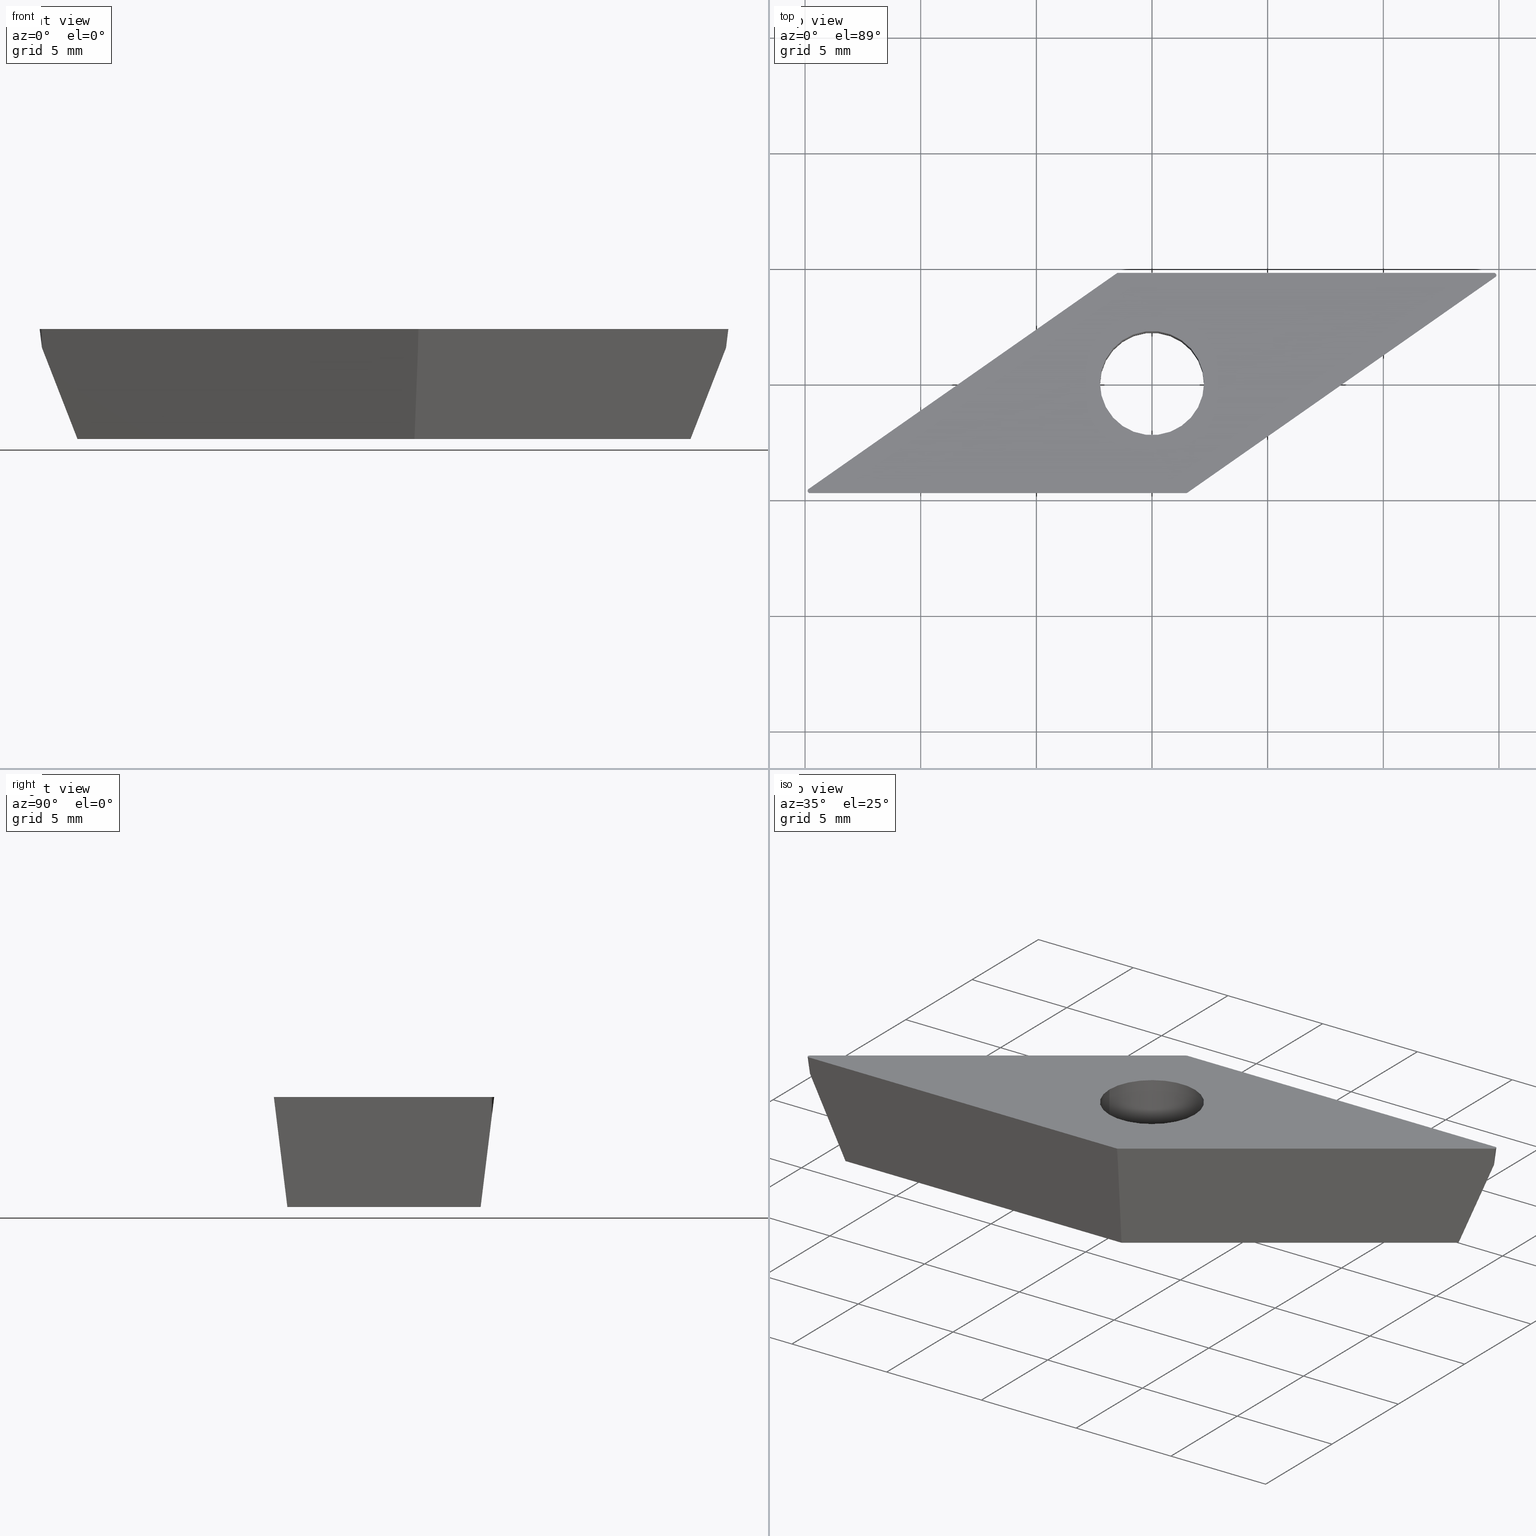
[diagram: canonical four-view strip — front | top / right | iso, engineering-drawing reading convention]
A machine part, canonical four-view strip (front | top / right | iso — engineering-drawing reading convention). The complete STEP part file that produces these views, byte-faithful:
ISO-10303-21;
HEADER;
FILE_DESCRIPTION (( 'STEP AP214' ),
    '1' );
FILE_NAME ('VC.. 160401.step',
    '2017-03-30T12:57:35',
    ( '' ),
    ( '' ),
    'SwSTEP 2.0',
    'SolidWorks 2016',
    '' );
FILE_SCHEMA (( 'AUTOMOTIVE_DESIGN' ));
ENDSEC;

DATA;
#1 = DIRECTION ( 'NONE',  ( 1.000000000000000000, 0.0000000000000000000, 0.0000000000000000000 ) ) ;
#2 = VECTOR ( 'NONE', #94, 1000.000000000000100 ) ;
#3 = DIRECTION ( 'NONE',  ( 0.0000000000000000000, 0.0000000000000000000, 1.000000000000000000 ) ) ;
#4 = MANIFOLD_SOLID_BREP ( 'Formschr�ge1', #48 ) ;
#5 = DIRECTION ( 'NONE',  ( 1.000000000000000000, 0.0000000000000000000, 0.0000000000000000000 ) ) ;
#6 = APPLICATION_CONTEXT ( 'automotive_design' ) ;
#7 = CYLINDRICAL_SURFACE ( 'NONE', #454, 2.250000000000000000 ) ;
#8 = DIRECTION ( 'NONE',  ( 0.0000000000000000000, 0.0000000000000000000, 1.000000000000000000 ) ) ;
#9 = ORIENTED_EDGE ( 'NONE', *, *, #249, .F. ) ;
#10 = CARTESIAN_POINT ( 'NONE',  ( -1.342790669617006900, 4.258787908418475400, -4.102405773799581800 ) ) ;
#11 = CARTESIAN_POINT ( 'NONE',  ( 0.0000000000000000000, 0.0000000000000000000, 0.0000000000000000000 ) ) ;
#12 =( NAMED_UNIT ( * ) SI_UNIT ( $, .STERADIAN. ) SOLID_ANGLE_UNIT ( ) );
#13 =( NAMED_UNIT ( * ) PLANE_ANGLE_UNIT ( ) SI_UNIT ( $, .RADIAN. ) );
#14 = VERTEX_POINT ( 'NONE', #286 ) ;
#15 =( LENGTH_UNIT ( ) NAMED_UNIT ( * ) SI_UNIT ( .MILLI., .METRE. ) );
#16 = SURFACE_STYLE_USAGE ( .BOTH. , #23 ) ;
#17 = DIRECTION ( 'NONE',  ( -1.000000000000000000, 0.0000000000000000000, 0.0000000000000000000 ) ) ;
#18 = DIRECTION ( 'NONE',  ( -1.000000000000000000, 0.0000000000000000000, 0.0000000000000000000 ) ) ;
#19 = ORIENTED_EDGE ( 'NONE', *, *, #396, .F. ) ;
#20 = CARTESIAN_POINT ( 'NONE',  ( 5.564323099076069000, -1.061573343201182000, -5.711999999999998900 ) ) ;
#21 = APPLICATION_CONTEXT ( 'automotive_design' ) ;
#22 = VERTEX_POINT ( 'NONE', #231 ) ;
#23 = SURFACE_SIDE_STYLE ('',( #448 ) ) ;
#24 = FILL_AREA_STYLE ('',( #49 ) ) ;
#25 = VECTOR ( 'NONE', #125, 1000.000000000000000 ) ;
#26 = EDGE_LOOP ( 'NONE', ( #442, #465 ) ) ;
#27 = ADVANCED_FACE ( 'NONE', ( #216 ), #476, .T. ) ;
#28 = FACE_OUTER_BOUND ( 'NONE', #432, .T. ) ;
#29 = VERTEX_POINT ( 'NONE', #287 ) ;
#30 = COLOUR_RGB ( '',0.7960784313725489700, 0.8235294117647058400, 0.9372549019607843100 ) ;
#31 = SURFACE_STYLE_FILL_AREA ( #307 ) ;
#32 = EDGE_LOOP ( 'NONE', ( #346, #358, #364, #365, #368, #376 ) ) ;
#33 = CARTESIAN_POINT ( 'NONE',  ( 14.84491840965371900, 4.580584795571104100, 0.0000000000000000000 ) ) ;
#34 =( NAMED_UNIT ( * ) SI_UNIT ( $, .STERADIAN. ) SOLID_ANGLE_UNIT ( ) );
#35 = ADVANCED_FACE ( 'NONE', ( #218 ), #158, .F. ) ;
#36 = VERTEX_POINT ( 'NONE', #139 ) ;
#37 = APPLICATION_CONTEXT ( 'automotive_design' ) ;
#38 = VERTEX_POINT ( 'NONE', #148 ) ;
#39 =( NAMED_UNIT ( * ) PLANE_ANGLE_UNIT ( ) SI_UNIT ( $, .RADIAN. ) );
#40 = ORIENTED_EDGE ( 'NONE', *, *, #343, .F. ) ;
#41 =( LENGTH_UNIT ( ) NAMED_UNIT ( * ) SI_UNIT ( .MILLI., .METRE. ) );
#42 = VECTOR ( 'NONE', #212, 1000.000000000000100 ) ;
#43 = ORIENTED_EDGE ( 'NONE', *, *, #412, .F. ) ;
#44 = DIRECTION ( 'NONE',  ( -0.0000000000000000000, -0.0000000000000000000, 1.000000000000000000 ) ) ;
#45 = ORIENTED_EDGE ( 'NONE', *, *, #456, .T. ) ;
#46 = LINE ( 'NONE', #105, #2 ) ;
#47 = ORIENTED_EDGE ( 'NONE', *, *, #464, .F. ) ;
#48 = CLOSED_SHELL ( 'NONE', ( #185, #35, #459, #455, #200, #27, #474, #152, #434, #134, #203, #369, #462 ) ) ;
#49 = FILL_AREA_STYLE_COLOUR ( '', #86 ) ;
#50 = B_SPLINE_CURVE_WITH_KNOTS ( 'NONE', 3,
 ( #404, #371, #239, #273 ),
 .UNSPECIFIED., .F., .F.,
 ( 4, 4 ),
 ( 4.336808689942017700E-019, 0.01456840004335754200 ),
 .UNSPECIFIED. ) ;
#51 = VECTOR ( 'NONE', #138, 1000.000000000000000 ) ;
#52 = CARTESIAN_POINT ( 'NONE',  ( 0.0000000000000000000, 0.0000000000000000000, 0.0000000000000000000 ) ) ;
#53 = CARTESIAN_POINT ( 'NONE',  ( -1.527438246783353200, 4.744415204428900500, 0.0000000000000000000 ) ) ;
#54 = ORIENTED_EDGE ( 'NONE', *, *, #428, .F. ) ;
#55 = DIRECTION ( 'NONE',  ( -1.000000000000000000, 0.0000000000000000000, -0.0000000000000000000 ) ) ;
#56 = DIRECTION ( 'NONE',  ( 0.0000000000000000000, 0.0000000000000000000, -1.000000000000000000 ) ) ;
#57 = VECTOR ( 'NONE', #121, 1000.000000000000000 ) ;
#58 = ORIENTED_EDGE ( 'NONE', *, *, #279, .F. ) ;
#59 = LINE ( 'NONE', #168, #57 ) ;
#60 = DIRECTION ( 'NONE',  ( -1.000000000000000000, 0.0000000000000000000, 0.0000000000000000000 ) ) ;
#61 = DIRECTION ( 'NONE',  ( -0.0000000000000000000, -0.0000000000000000000, 1.000000000000000000 ) ) ;
#62 = CARTESIAN_POINT ( 'NONE',  ( -14.78756076601861800, -4.662500000000001400, 0.0000000000000000000 ) ) ;
#63 = CIRCLE ( 'NONE', #392, 2.250000000000000000 ) ;
#64 = CARTESIAN_POINT ( 'NONE',  ( -13.25106736044395100, -4.178045490102173100, -4.760000000000000700 ) ) ;
#65 = DIRECTION ( 'NONE',  ( -0.1218693434051477400, 0.0000000000000000000, 0.9925461516413219800 ) ) ;
#66 = VECTOR ( 'NONE', #283, 1000.000000000000000 ) ;
#67 = CARTESIAN_POINT ( 'NONE',  ( 3.949133186574038700, 4.061154588122606800, -5.711999999999998900 ) ) ;
#68 = ORIENTED_EDGE ( 'NONE', *, *, #428, .T. ) ;
#69 = ORIENTED_EDGE ( 'NONE', *, *, #426, .F. ) ;
#70 = ORIENTED_EDGE ( 'NONE', *, *, #384, .F. ) ;
#71 = PRODUCT ( 'VC.. 160401', 'VC.. 160401', '', ( #109 ) ) ;
#72 = ORIENTED_EDGE ( 'NONE', *, *, #433, .F. ) ;
#73 = VERTEX_POINT ( 'NONE', #276 ) ;
#74 = CARTESIAN_POINT ( 'NONE',  ( 9.368346976296321000, 4.061154588122611200, -5.711999999999998900 ) ) ;
#75 = CARTESIAN_POINT ( 'NONE',  ( 14.78756076601861500, 4.061154588122611200, -5.711999999999998900 ) ) ;
#76 = CARTESIAN_POINT ( 'NONE',  ( 1.470080603148248500, -4.662500000000000500, 0.0000000000000000000 ) ) ;
#77 = CARTESIAN_POINT ( 'NONE',  ( -1.470080603148251800, 4.762499999999999300, 0.0000000000000000000 ) ) ;
#78 = FACE_OUTER_BOUND ( 'NONE', #471, .T. ) ;
#79 = UNCERTAINTY_MEASURE_WITH_UNIT (LENGTH_MEASURE( 1.000000000000000100E-005 ), #447, 'distance_accuracy_value', 'NONE');
#80 = CARTESIAN_POINT ( 'NONE',  ( 3.949133186574037800, 4.762499999999999300, 0.0000000000000000000 ) ) ;
#81 = ORIENTED_EDGE ( 'NONE', *, *, #211, .F. ) ;
#82 = DIRECTION ( 'NONE',  ( -1.000000000000000000, 0.0000000000000000000, 0.0000000000000000000 ) ) ;
#83 = CARTESIAN_POINT ( 'NONE',  ( 9.368346976296321000, 4.762500000000003700, 0.0000000000000000000 ) ) ;
#84 = DIRECTION ( 'NONE',  ( -1.000000000000000000, -2.611539394764484900E-016, -0.0000000000000000000 ) ) ;
#85 = CARTESIAN_POINT ( 'NONE',  ( 14.78756076601861500, 4.762500000000003700, 0.0000000000000000000 ) ) ;
#86 = COLOUR_RGB ( '',0.7960784313725489700, 0.8235294117647058400, 0.9372549019607843100 ) ;
#87 = ORIENTED_EDGE ( 'NONE', *, *, #407, .F. ) ;
#88 = EDGE_LOOP ( 'NONE', ( #406, #430, #87 ) ) ;
#89 = CARTESIAN_POINT ( 'NONE',  ( 1.470080603148248500, -4.662500000000000500, 0.0000000000000000000 ) ) ;
#90 = CARTESIAN_POINT ( 'NONE',  ( 0.0000000000000000000, 0.0000000000000000000, -4.759999999999999800 ) ) ;
#91 = CIRCLE ( 'NONE', #386, 0.09999999999999939500 ) ;
#92 = B_SPLINE_CURVE_WITH_KNOTS ( 'NONE', 3,
 ( #379, #367, #363, #361, #359, #357, #355 ),
 .UNSPECIFIED., .F., .F.,
 ( 4, 3, 4 ),
 ( 0.0000000000000000000, 0.001989064735450687800, 0.003978129470901375600 ),
 .UNSPECIFIED. ) ;
#93 = CARTESIAN_POINT ( 'NONE',  ( 1.317332682910368400, -4.178045490102174900, -4.759999999999999800 ) ) ;
#94 = DIRECTION ( 'NONE',  ( 0.8191520442889945700, 0.5735764363510419400, -0.0000000000000000000 ) ) ;
#95 = CARTESIAN_POINT ( 'NONE',  ( -14.78756076601861700, -4.762500000000002000, 0.0000000000000000000 ) ) ;
#96 = EDGE_CURVE ( 'NONE', #38, #473, #373, .T. ) ;
#97 = CARTESIAN_POINT ( 'NONE',  ( -1.501610482036148000, 4.762499999999999300, 0.0000000000000000000 ) ) ;
#98 = CARTESIAN_POINT ( 'NONE',  ( -1.317332682910756800, 4.178045490102173100, -4.759999999999998900 ) ) ;
#99 = DIRECTION ( 'NONE',  ( 0.06990138369076598400, -0.09982952178648429900, -0.9925461516413219800 ) ) ;
#100 = EDGE_LOOP ( 'NONE', ( #9, #19, #81 ) ) ;
#101 = DIRECTION ( 'NONE',  ( 1.000000000000000000, 0.0000000000000000000, 0.0000000000000000000 ) ) ;
#102 = CARTESIAN_POINT ( 'NONE',  ( 13.25106736044730100, 4.178045490102176600, -4.759999999999998900 ) ) ;
#103 = CARTESIAN_POINT ( 'NONE',  ( 8.394934012661277500, 4.178045490102176600, -4.759999999999997100 ) ) ;
#104 = ADVANCED_BREP_SHAPE_REPRESENTATION ( 'VC.. 160401', ( #4, #252 ), #340 ) ;
#105 = CARTESIAN_POINT ( 'NONE',  ( 15.10472024625493900, 4.762500000000003700, 0.0000000000000000000 ) ) ;
#106 = CARTESIAN_POINT ( 'NONE',  ( -1.527438246783353200, 4.744415204428900500, 0.0000000000000000000 ) ) ;
#107 = EDGE_LOOP ( 'NONE', ( #182, #43, #47 ) ) ;
#108 = B_SPLINE_CURVE_WITH_KNOTS ( 'NONE', 3,
 ( #127, #10, #118, #117, #131, #129, #128 ),
 .UNSPECIFIED., .F., .F.,
 ( 4, 3, 4 ),
 ( 0.0000000000000000000, 0.001989064735450666100, 0.003978129470901333900 ),
 .UNSPECIFIED. ) ;
#109 = PRODUCT_CONTEXT ( 'NONE', #339, 'mechanical' ) ;
#110 = CARTESIAN_POINT ( 'NONE',  ( -2.250000000000000000, 2.755455298081544300E-016, -4.759999999999999800 ) ) ;
#111 = CARTESIAN_POINT ( 'NONE',  ( -14.78756076601861700, -4.762500000000002000, 0.0000000000000000000 ) ) ;
#112 = VECTOR ( 'NONE', #261, 1000.000000000000000 ) ;
#113 = CARTESIAN_POINT ( 'NONE',  ( 0.0000000000000000000, 0.0000000000000000000, -4.759999999999999800 ) ) ;
#114 = CARTESIAN_POINT ( 'NONE',  ( 14.78756076601861500, 4.762500000000003700, 0.0000000000000000000 ) ) ;
#115 = DIRECTION ( 'NONE',  ( -0.0000000000000000000, -0.0000000000000000000, 1.000000000000000000 ) ) ;
#116 = DIRECTION ( 'NONE',  ( -0.0000000000000000000, -0.0000000000000000000, 1.000000000000000000 ) ) ;
#117 = CARTESIAN_POINT ( 'NONE',  ( -1.393706643029502600, 4.420272745051085500, -2.787217321398748600 ) ) ;
#118 = CARTESIAN_POINT ( 'NONE',  ( -1.368248656323254100, 4.339530326734782200, -3.444811547599165600 ) ) ;
#119 = DIRECTION ( 'NONE',  ( 3.182665913166247500E-017, -0.1218693434051477400, -0.9925461516413219800 ) ) ;
#120 = DIRECTION ( 'NONE',  ( 0.0000000000000000000, 0.0000000000000000000, 1.000000000000000000 ) ) ;
#121 = DIRECTION ( 'NONE',  ( 0.0000000000000000000, 0.0000000000000000000, 1.000000000000000000 ) ) ;
#122 = DIRECTION ( 'NONE',  ( -1.000000000000000000, 0.0000000000000000000, 0.0000000000000000000 ) ) ;
#123 = VECTOR ( 'NONE', #119, 1000.000000000000000 ) ;
#124 = VERTEX_POINT ( 'NONE', #309 ) ;
#125 = DIRECTION ( 'NONE',  ( 1.000000000000000000, 5.223078789528969500E-017, -0.0000000000000000000 ) ) ;
#126 = CARTESIAN_POINT ( 'NONE',  ( 14.78756076601861500, 4.662500000000004100, -0.8144346427974578100 ) ) ;
#127 = CARTESIAN_POINT ( 'NONE',  ( -1.317332682910756800, 4.178045490102173100, -4.759999999999998900 ) ) ;
#128 = CARTESIAN_POINT ( 'NONE',  ( -1.470080603148246300, 4.662499999999996100, -0.8144346427974968900 ) ) ;
#129 = CARTESIAN_POINT ( 'NONE',  ( -1.444622616442004200, 4.581757581683691100, -1.472028868997913700 ) ) ;
#130 = APPLICATION_PROTOCOL_DEFINITION ( 'draft international standard', 'automotive_design', 1998, #339 ) ;
#131 = CARTESIAN_POINT ( 'NONE',  ( -1.419164629735751200, 4.501015163367388700, -2.129623095198331500 ) ) ;
#132 = CIRCLE ( 'NONE', #326, 0.1000000000000000500 ) ;
#133 = CARTESIAN_POINT ( 'NONE',  ( -13.25106736044395100, -4.178045490102173100, -4.760000000000000700 ) ) ;
#134 = ADVANCED_FACE ( 'NONE', ( #157 ), #352, .T. ) ;
#135 = DIRECTION ( 'NONE',  ( -1.000000000000000000, 0.0000000000000000000, 0.0000000000000000000 ) ) ;
#136 = CARTESIAN_POINT ( 'NONE',  ( -14.84491840965372200, -4.580584795571102300, 0.0000000000000000000 ) ) ;
#137 = VECTOR ( 'NONE', #302, 1000.000000000000000 ) ;
#138 = DIRECTION ( 'NONE',  ( -3.182665913166247500E-017, 0.1218693434051477400, 0.9925461516413219800 ) ) ;
#139 = CARTESIAN_POINT ( 'NONE',  ( 14.84491840965371900, 4.580584795571104100, 0.0000000000000000000 ) ) ;
#140 = CARTESIAN_POINT ( 'NONE',  ( 14.84491840965371900, 4.580584795571104100, 0.0000000000000000000 ) ) ;
#141 = CARTESIAN_POINT ( 'NONE',  ( 2.250000000000000000, 0.0000000000000000000, 0.0000000000000000000 ) ) ;
#142 = EDGE_CURVE ( 'NONE', #314, #124, #50, .T. ) ;
#143 = CARTESIAN_POINT ( 'NONE',  ( 14.78756076601861500, 4.662500000000003200, 0.0000000000000000000 ) ) ;
#144 = LINE ( 'NONE', #140, #153 ) ;
#145 = B_SPLINE_CURVE_WITH_KNOTS ( 'NONE', 3,
 ( #102, #103, #192, #98 ),
 .UNSPECIFIED., .F., .F.,
 ( 4, 4 ),
 ( 0.0000000000000000000, 0.01456840004335805900 ),
 .UNSPECIFIED. ) ;
#146 = CARTESIAN_POINT ( 'NONE',  ( 1.317332682910368400, -4.178045490102174900, -4.759999999999999800 ) ) ;
#147 = PLANE ( 'NONE',  #265 ) ;
#148 = CARTESIAN_POINT ( 'NONE',  ( -1.317332682910756800, 4.178045490102173100, -4.759999999999998900 ) ) ;
#149 = LINE ( 'NONE', #206, #25 ) ;
#150 = DIRECTION ( 'NONE',  ( -1.000000000000000000, -8.673617379884030700E-015, 0.0000000000000000000 ) ) ;
#151 = CARTESIAN_POINT ( 'NONE',  ( 1.527438246783349800, -4.744415204428903200, 0.0000000000000000000 ) ) ;
#152 = ADVANCED_FACE ( 'NONE', ( #353, #375 ), #316, .F. ) ;
#153 = VECTOR ( 'NONE', #160, 1000.000000000000000 ) ;
#154 = DIRECTION ( 'NONE',  ( -1.000000000000000000, 0.0000000000000000000, 0.0000000000000000000 ) ) ;
#155 = DIRECTION ( 'NONE',  ( -0.0000000000000000000, -0.0000000000000000000, 1.000000000000000000 ) ) ;
#156 = CARTESIAN_POINT ( 'NONE',  ( 0.0000000000000000000, 0.0000000000000000000, 0.0000000000000000000 ) ) ;
#157 = FACE_OUTER_BOUND ( 'NONE', #88, .T. ) ;
#158 = CYLINDRICAL_SURFACE ( 'NONE', #477, 2.250000000000000000 ) ;
#159 = CARTESIAN_POINT ( 'NONE',  ( 2.250000000000000000, 0.0000000000000000000, -4.759999999999999800 ) ) ;
#160 = DIRECTION ( 'NONE',  ( 0.06990138369076599700, -0.09982952178648427100, 0.9925461516413219800 ) ) ;
#161 = CARTESIAN_POINT ( 'NONE',  ( 13.50714959470895600, 4.258787908418492300, -4.102405773799485900 ) ) ;
#162 = DIRECTION ( 'NONE',  ( -1.000000000000000000, 8.673617379884030700E-015, 0.0000000000000000000 ) ) ;
#163 = DIRECTION ( 'NONE',  ( -0.0000000000000000000, -0.0000000000000000000, 1.000000000000000000 ) ) ;
#164 = CARTESIAN_POINT ( 'NONE',  ( -1.470080603148250700, 4.662499999999998800, 0.0000000000000000000 ) ) ;
#165 = LINE ( 'NONE', #284, #137 ) ;
#166 = CARTESIAN_POINT ( 'NONE',  ( 1.470080603148244300, -4.662500000000002300, -0.8144346427974711300 ) ) ;
#167 = SHAPE_DEFINITION_REPRESENTATION ( #272, #104 ) ;
#168 = CARTESIAN_POINT ( 'NONE',  ( 2.250000000000000000, 0.0000000000000000000, -4.759999999999999800 ) ) ;
#169 = CARTESIAN_POINT ( 'NONE',  ( 13.25106736044730100, 4.178045490102176600, -4.759999999999998900 ) ) ;
#170 = EDGE_LOOP ( 'NONE', ( #419, #422 ) ) ;
#171 = CARTESIAN_POINT ( 'NONE',  ( -1.470080603148251800, 4.762499999999999300, 0.0000000000000000000 ) ) ;
#172 = UNCERTAINTY_MEASURE_WITH_UNIT (LENGTH_MEASURE( 1.000000000000000100E-005 ), #15, 'distance_accuracy_value', 'NONE');
#173 = CIRCLE ( 'NONE', #418, 2.250000000000000000 ) ;
#174 = LINE ( 'NONE', #204, #66 ) ;
#175 = VECTOR ( 'NONE', #222, 1000.000000000000000 ) ;
#176 = CIRCLE ( 'NONE', #470, 2.250000000000000000 ) ;
#177 = VECTOR ( 'NONE', #84, 1000.000000000000000 ) ;
#178 = CARTESIAN_POINT ( 'NONE',  ( -2.250000000000000000, 2.755455298081544300E-016, 0.0000000000000000000 ) ) ;
#179 = DIRECTION ( 'NONE',  ( 1.000000000000000000, 0.0000000000000000000, 0.0000000000000000000 ) ) ;
#180 = LINE ( 'NONE', #171, #51 ) ;
#181 = CARTESIAN_POINT ( 'NONE',  ( 14.78756076601861500, 4.662500000000004100, -0.8144346427974578100 ) ) ;
#182 = ORIENTED_EDGE ( 'NONE', *, *, #456, .F. ) ;
#183 = LINE ( 'NONE', #251, #112 ) ;
#184 = EDGE_CURVE ( 'NONE', #14, #300, #176, .T. ) ;
#185 = ADVANCED_FACE ( 'NONE', ( #236 ), #347, .T. ) ;
#186 = CARTESIAN_POINT ( 'NONE',  ( -5.564323099080708000, 1.061573343207805600, -5.711999999999998900 ) ) ;
#187 = LINE ( 'NONE', #151, #175 ) ;
#188 = FACE_OUTER_BOUND ( 'NONE', #319, .T. ) ;
#189 = CARTESIAN_POINT ( 'NONE',  ( 13.76323182897069600, 4.339530326734805300, -3.444811547599007100 ) ) ;
#190 = CONICAL_SURFACE ( 'NONE', #372, 0.09999999999999939500, 0.1221730476396033400 ) ;
#191 = DIRECTION ( 'NONE',  ( 1.000000000000000000, 0.0000000000000000000, 0.0000000000000000000 ) ) ;
#192 = CARTESIAN_POINT ( 'NONE',  ( 3.538800664875263900, 4.178045490102172200, -4.759999999999998000 ) ) ;
#193 = CARTESIAN_POINT ( 'NONE',  ( 14.53147853175643400, 4.581757581683713300, -1.472028868997768100 ) ) ;
#194 = CARTESIAN_POINT ( 'NONE',  ( 14.27539629749443700, 4.501015163367415400, -2.129623095198148100 ) ) ;
#195 = DIRECTION ( 'NONE',  ( -0.0000000000000000000, -0.0000000000000000000, 1.000000000000000000 ) ) ;
#196 = FACE_OUTER_BOUND ( 'NONE', #107, .T. ) ;
#197 = CARTESIAN_POINT ( 'NONE',  ( 14.01931406323256700, 4.420272745051110300, -2.787217321398577100 ) ) ;
#198 = DIRECTION ( 'NONE',  ( 1.000000000000000000, 0.0000000000000000000, 0.0000000000000000000 ) ) ;
#199 = CIRCLE ( 'NONE', #389, 0.1000000000000000500 ) ;
#200 = ADVANCED_FACE ( 'NONE', ( #188 ), #230, .T. ) ;
#201 = EDGE_CURVE ( 'NONE', #381, #405, #149, .T. ) ;
#202 = DIRECTION ( 'NONE',  ( 0.0000000000000000000, 0.0000000000000000000, 1.000000000000000000 ) ) ;
#203 = ADVANCED_FACE ( 'NONE', ( #342 ), #337, .T. ) ;
#204 = CARTESIAN_POINT ( 'NONE',  ( -14.84491840965372400, -4.580584795571104100, 0.0000000000000000000 ) ) ;
#205 = CARTESIAN_POINT ( 'NONE',  ( -13.25106736044395100, -4.178045490102173100, -4.760000000000000700 ) ) ;
#206 = CARTESIAN_POINT ( 'NONE',  ( 1.501610482036145800, -4.762500000000001100, 0.0000000000000000000 ) ) ;
#207 = CARTESIAN_POINT ( 'NONE',  ( -1.470080603148251600, 4.061154588122606800, -5.711999999999998900 ) ) ;
#208 = LINE ( 'NONE', #263, #42 ) ;
#209 = ORIENTED_EDGE ( 'NONE', *, *, #320, .T. ) ;
#210 = CARTESIAN_POINT ( 'NONE',  ( -5.966598301076501800, 1.636081871099875900, 0.0000000000000000000 ) ) ;
#211 = EDGE_CURVE ( 'NONE', #405, #328, #132, .T. ) ;
#212 = DIRECTION ( 'NONE',  ( -0.8191520442889946900, -0.5735764363510417200, -0.0000000000000000000 ) ) ;
#213 = ORIENTED_EDGE ( 'NONE', *, *, #444, .T. ) ;
#214 = DIRECTION ( 'NONE',  ( 1.000000000000000000, 0.0000000000000000000, 0.0000000000000000000 ) ) ;
#215 = EDGE_CURVE ( 'NONE', #295, #383, #173, .T. ) ;
#216 = FACE_OUTER_BOUND ( 'NONE', #315, .T. ) ;
#217 = VECTOR ( 'NONE', #224, 1000.000000000000000 ) ;
#218 = FACE_OUTER_BOUND ( 'NONE', #438, .T. ) ;
#219 = CARTESIAN_POINT ( 'NONE',  ( -1.527438246783353200, 4.744415204428900500, 0.0000000000000000000 ) ) ;
#220 = STYLED_ITEM ( 'NONE', ( #399 ), #104 ) ;
#221 = UNCERTAINTY_MEASURE_WITH_UNIT (LENGTH_MEASURE( 1.000000000000000100E-005 ), #41, 'distance_accuracy_value', 'NONE');
#222 = DIRECTION ( 'NONE',  ( -0.06990138369076599700, 0.09982952178648427100, -0.9925461516413219800 ) ) ;
#223 = CARTESIAN_POINT ( 'NONE',  ( -10.40575835536146000, -1.472251462240816700, 0.0000000000000000000 ) ) ;
#224 = DIRECTION ( 'NONE',  ( 0.0000000000000000000, 0.0000000000000000000, 1.000000000000000000 ) ) ;
#225 = FACE_OUTER_BOUND ( 'NONE', #32, .T. ) ;
#226 = CARTESIAN_POINT ( 'NONE',  ( -13.76323182896872400, -4.339530326734789300, -3.444811547599106600 ) ) ;
#227 = DIRECTION ( 'NONE',  ( 0.0000000000000000000, 0.0000000000000000000, 1.000000000000000000 ) ) ;
#228 = CARTESIAN_POINT ( 'NONE',  ( 0.0000000000000000000, 0.0000000000000000000, 0.0000000000000000000 ) ) ;
#229 = CARTESIAN_POINT ( 'NONE',  ( -14.84491840965372400, -4.580584795571104100, 0.0000000000000000000 ) ) ;
#230 = B_SPLINE_SURFACE_WITH_KNOTS ( 'NONE', 1, 3, ( 
 ( #306, #271, #299, #33 ),
 ( #480, #20, #472, #469 ) ),
 .UNSPECIFIED., .F., .F., .F.,
 ( 2, 2 ),
 ( 4, 4 ),
 ( 0.0000000000000000000, 1.000000000000000000 ),
 ( -0.01657480084940319100, -0.0003171594802363237100 ),
 .UNSPECIFIED. ) ;
#231 = CARTESIAN_POINT ( 'NONE',  ( -1.470080603148246300, 4.662499999999996100, -0.8144346427974968900 ) ) ;
#232 = CARTESIAN_POINT ( 'NONE',  ( 14.78756076601861500, 4.662500000000003200, 0.0000000000000000000 ) ) ;
#233 = CARTESIAN_POINT ( 'NONE',  ( -14.78756076601861800, -4.662500000000001400, 0.0000000000000000000 ) ) ;
#234 = APPLICATION_PROTOCOL_DEFINITION ( 'draft international standard', 'automotive_design', 1998, #6 ) ;
#235 = LINE ( 'NONE', #110, #217 ) ;
#236 = FACE_OUTER_BOUND ( 'NONE', #451, .T. ) ;
#237 = PRODUCT_DEFINITION_FORMATION_WITH_SPECIFIED_SOURCE ( 'ANY', '', #71, .NOT_KNOWN. ) ;
#238 = DIRECTION ( 'NONE',  ( -0.0000000000000000000, -0.0000000000000000000, 1.000000000000000000 ) ) ;
#239 = CARTESIAN_POINT ( 'NONE',  ( 9.273155801270123200, 1.392681830031484900, -4.759999999999998900 ) ) ;
#240 = CARTESIAN_POINT ( 'NONE',  ( -1.125163044787564700, 4.169906676536826700, -5.711999999999998900 ) ) ;
#241 = LINE ( 'NONE', #97, #177 ) ;
#242 = AXIS2_PLACEMENT_3D ( 'NONE', #256, #195, #82 ) ;
#243 = CARTESIAN_POINT ( 'NONE',  ( -13.50714959470632000, -4.258787908418481600, -4.102405773799547200 ) ) ;
#244 = CARTESIAN_POINT ( 'NONE',  ( 14.78756076601861500, 4.762500000000003700, 0.0000000000000000000 ) ) ;
#245 = CARTESIAN_POINT ( 'NONE',  ( -1.470080603148250700, 4.662499999999998800, 0.0000000000000000000 ) ) ;
#246 = CARTESIAN_POINT ( 'NONE',  ( -8.394934012659177800, -4.178045490102174900, -4.759999999999999800 ) ) ;
#247 = CARTESIAN_POINT ( 'NONE',  ( -14.53147853175609500, -4.581757581683702600, -1.472028868997844500 ) ) ;
#248 = CARTESIAN_POINT ( 'NONE',  ( -14.27539629749361300, -4.501015163367400300, -2.129623095198255100 ) ) ;
#249 = EDGE_CURVE ( 'NONE', #452, #405, #165, .T. ) ;
#250 = CARTESIAN_POINT ( 'NONE',  ( -14.01931406323116700, -4.420272745051095200, -2.787217321398681100 ) ) ;
#251 = CARTESIAN_POINT ( 'NONE',  ( -14.78756076601861700, -4.762500000000002000, 0.0000000000000000000 ) ) ;
#252 = AXIS2_PLACEMENT_3D ( 'NONE', #11, #8, #5 ) ;
#253 = CARTESIAN_POINT ( 'NONE',  ( -10.00348315336567900, -2.046759990132894600, -5.711999999999998900 ) ) ;
#254 = CARTESIAN_POINT ( 'NONE',  ( -14.78756076601861700, -4.662500000000002300, -0.8144346427974499300 ) ) ;
#255 = CARTESIAN_POINT ( 'NONE',  ( -14.44264320765793600, -5.155093323463177900, -5.711999999999998900 ) ) ;
#256 = CARTESIAN_POINT ( 'NONE',  ( -14.78756076601861800, -4.662500000000001400, 0.0000000000000000000 ) ) ;
#257 = CARTESIAN_POINT ( 'NONE',  ( 0.0000000000000000000, 0.0000000000000000000, -4.759999999999999800 ) ) ;
#258 = AXIS2_PLACEMENT_3D ( 'NONE', #52, #3, #1 ) ;
#259 = CARTESIAN_POINT ( 'NONE',  ( 0.0000000000000000000, 0.0000000000000000000, 0.0000000000000000000 ) ) ;
#260 = PRODUCT_DEFINITION ( 'UNKNOWN', '', #289, #362 ) ;
#261 = DIRECTION ( 'NONE',  ( -6.365331826332493700E-018, 0.1218693434051477400, -0.9925461516413219800 ) ) ;
#262 = CARTESIAN_POINT ( 'NONE',  ( 1.470080603148248500, -4.762500000000001100, 0.0000000000000000000 ) ) ;
#263 = CARTESIAN_POINT ( 'NONE',  ( -15.10472024625494200, -4.762500000000002000, 0.0000000000000000000 ) ) ;
#264 = CARTESIAN_POINT ( 'NONE',  ( -14.88756076601861800, -4.662500000000001400, 0.0000000000000000000 ) ) ;
#265 = AXIS2_PLACEMENT_3D ( 'NONE', #90, #56, #55 ) ;
#266 = CARTESIAN_POINT ( 'NONE',  ( -1.317332682910756800, 4.178045490102173100, -4.759999999999998900 ) ) ;
#267 = B_SPLINE_CURVE_WITH_KNOTS ( 'NONE', 3,
 ( #169, #161, #189, #197, #194, #193, #126 ),
 .UNSPECIFIED., .F., .F.,
 ( 4, 3, 4 ),
 ( 0.0000000000000000000, 0.002130903220789326900, 0.004261806441578652000 ),
 .UNSPECIFIED. ) ;
#268 = PRESENTATION_LAYER_ASSIGNMENT (  '', '', ( #220 ) ) ;
#269 = CARTESIAN_POINT ( 'NONE',  ( 0.0000000000000000000, 0.0000000000000000000, -4.759999999999999800 ) ) ;
#270 = LINE ( 'NONE', #106, #394 ) ;
#271 = CARTESIAN_POINT ( 'NONE',  ( 5.966598301071854800, -1.636081871093256300, 0.0000000000000000000 ) ) ;
#272 = PRODUCT_DEFINITION_SHAPE ( 'NONE', 'NONE',  #260 ) ;
#273 = CARTESIAN_POINT ( 'NONE',  ( 13.25106736044730100, 4.178045490102176600, -4.759999999999998900 ) ) ;
#274 = VECTOR ( 'NONE', #65, 1000.000000000000000 ) ;
#275 = LINE ( 'NONE', #264, #274 ) ;
#276 = CARTESIAN_POINT ( 'NONE',  ( -14.88756076601861800, -4.662500000000001400, 0.0000000000000000000 ) ) ;
#277 = CARTESIAN_POINT ( 'NONE',  ( -14.78756076601861700, -4.662500000000002300, -0.8144346427974499300 ) ) ;
#278 = ORIENTED_EDGE ( 'NONE', *, *, #403, .F. ) ;
#279 = EDGE_CURVE ( 'NONE', #336, #484, #174, .T. ) ;
#280 = CARTESIAN_POINT ( 'NONE',  ( -3.538800664874408600, -4.178045490102174000, -4.759999999999999800 ) ) ;
#281 = VERTEX_POINT ( 'NONE', #244 ) ;
#282 = CARTESIAN_POINT ( 'NONE',  ( -5.295244242091227300, 1.392681830037967700, -4.759999999999999800 ) ) ;
#283 = DIRECTION ( 'NONE',  ( -0.06990138369076598400, 0.09982952178648429900, 0.9925461516413219800 ) ) ;
#284 = CARTESIAN_POINT ( 'NONE',  ( 1.470080603148249600, -4.762500000000001100, 0.0000000000000000000 ) ) ;
#285 = CARTESIAN_POINT ( 'NONE',  ( -14.78756076601861700, -4.061154588122609400, -5.711999999999998900 ) ) ;
#286 = CARTESIAN_POINT ( 'NONE',  ( -2.250000000000000000, 2.755455298081544300E-016, -4.759999999999999800 ) ) ;
#287 = CARTESIAN_POINT ( 'NONE',  ( -1.470080603148250700, 4.762499999999999300, 0.0000000000000000000 ) ) ;
#288 = ORIENTED_EDGE ( 'NONE', *, *, #184, .F. ) ;
#289 = PRODUCT_DEFINITION_FORMATION_WITH_SPECIFIED_SOURCE ( 'ANY', '', #421, .NOT_KNOWN. ) ;
#290 = ORIENTED_EDGE ( 'NONE', *, *, #294, .T. ) ;
#291 = DIRECTION ( 'NONE',  ( -1.000000000000000000, 0.0000000000000000000, -0.0000000000000000000 ) ) ;
#292 = DIRECTION ( 'NONE',  ( 0.0000000000000000000, 0.0000000000000000000, -1.000000000000000000 ) ) ;
#293 = EDGE_LOOP ( 'NONE', ( #424, #427, #437, #439 ) ) ;
#294 = EDGE_CURVE ( 'NONE', #383, #295, #351, .T. ) ;
#295 = VERTEX_POINT ( 'NONE', #178 ) ;
#296 = ORIENTED_EDGE ( 'NONE', *, *, #384, .T. ) ;
#297 = ORIENTED_EDGE ( 'NONE', *, *, #215, .T. ) ;
#298 = CARTESIAN_POINT ( 'NONE',  ( -9.368346976296324500, -4.762500000000002000, 0.0000000000000000000 ) ) ;
#299 = CARTESIAN_POINT ( 'NONE',  ( 10.40575835536300700, 1.472251462238612300, 0.0000000000000000000 ) ) ;
#300 = VERTEX_POINT ( 'NONE', #159 ) ;
#301 = CARTESIAN_POINT ( 'NONE',  ( -13.25106736044395100, -4.178045490102173100, -4.760000000000000700 ) ) ;
#302 = DIRECTION ( 'NONE',  ( 6.365331826332493700E-018, -0.1218693434051477400, 0.9925461516413219800 ) ) ;
#303 = PRODUCT_RELATED_PRODUCT_CATEGORY ( 'part', '', ( #421 ) ) ;
#304 = ORIENTED_EDGE ( 'NONE', *, *, #320, .F. ) ;
#305 = CARTESIAN_POINT ( 'NONE',  ( 0.0000000000000000000, 0.0000000000000000000, -4.759999999999999800 ) ) ;
#306 = CARTESIAN_POINT ( 'NONE',  ( 1.527438246783349800, -4.744415204428903200, 0.0000000000000000000 ) ) ;
#307 = FILL_AREA_STYLE ('',( #310 ) ) ;
#308 = ORIENTED_EDGE ( 'NONE', *, *, #385, .F. ) ;
#309 = CARTESIAN_POINT ( 'NONE',  ( 13.25106736044730100, 4.178045490102176600, -4.759999999999998900 ) ) ;
#310 = FILL_AREA_STYLE_COLOUR ( '', #30 ) ;
#311 = PRODUCT_DEFINITION_CONTEXT ( 'detailed design', #37, 'design' ) ;
#312 =( NAMED_UNIT ( * ) PLANE_ANGLE_UNIT ( ) SI_UNIT ( $, .RADIAN. ) );
#313 = DIRECTION ( 'NONE',  ( 0.0000000000000000000, 0.0000000000000000000, 1.000000000000000000 ) ) ;
#314 = VERTEX_POINT ( 'NONE', #146 ) ;
#315 = EDGE_LOOP ( 'NONE', ( #401, #408, #409, #410, #411, #415 ) ) ;
#316 = PLANE ( 'NONE',  #360 ) ;
#317 = EDGE_LOOP ( 'NONE', ( #466, #467, #468, #479, #481, #483, #488, #213, #68 ) ) ;
#318 = PRODUCT_DEFINITION ( 'UNKNOWN', '', #237, #311 ) ;
#319 = EDGE_LOOP ( 'NONE', ( #380, #382, #388, #395, #397, #398 ) ) ;
#320 = EDGE_CURVE ( 'NONE', #300, #383, #59, .T. ) ;
#321 = EDGE_CURVE ( 'NONE', #473, #314, #374, .T. ) ;
#322 = CARTESIAN_POINT ( 'NONE',  ( -14.78756076601861800, -4.662500000000001400, 0.0000000000000000000 ) ) ;
#323 = ORIENTED_EDGE ( 'NONE', *, *, #441, .T. ) ;
#324 = B_SPLINE_SURFACE_WITH_KNOTS ( 'NONE', 1, 3, ( 
 ( #85, #83, #80, #77 ),
 ( #75, #74, #67, #207 ) ),
 .UNSPECIFIED., .F., .F., .F.,
 ( 2, 2 ),
 ( 4, 4 ),
 ( 0.0000000000000000000, 1.000000000000000000 ),
 ( -0.01628917124805476200, -3.152987888789733100E-005 ),
 .UNSPECIFIED. ) ;
#325 = ORIENTED_EDGE ( 'NONE', *, *, #431, .F. ) ;
#326 = AXIS2_PLACEMENT_3D ( 'NONE', #76, #155, #150 ) ;
#327 = PRESENTATION_STYLE_ASSIGNMENT (( #450 ) ) ;
#328 = VERTEX_POINT ( 'NONE', #390 ) ;
#329 = DIRECTION ( 'NONE',  ( -0.0000000000000000000, -0.0000000000000000000, 1.000000000000000000 ) ) ;
#330 = EDGE_CURVE ( 'NONE', #314, #452, #92, .T. ) ;
#331 = FACE_OUTER_BOUND ( 'NONE', #293, .T. ) ;
#332 = ORIENTED_EDGE ( 'NONE', *, *, #96, .T. ) ;
#333 = FACE_BOUND ( 'NONE', #170, .T. ) ;
#334 = ORIENTED_EDGE ( 'NONE', *, *, #402, .T. ) ;
#335 = ORIENTED_EDGE ( 'NONE', *, *, #279, .T. ) ;
#336 = VERTEX_POINT ( 'NONE', #277 ) ;
#337 = CONICAL_SURFACE ( 'NONE', #356, 0.1000000000000000500, 0.1221730476396033400 ) ;
#338 = DIRECTION ( 'NONE',  ( -0.0000000000000000000, -0.0000000000000000000, 1.000000000000000000 ) ) ;
#339 = APPLICATION_CONTEXT ( 'automotive_design' ) ;
#340 =( GEOMETRIC_REPRESENTATION_CONTEXT ( 3 ) GLOBAL_UNCERTAINTY_ASSIGNED_CONTEXT ( ( #221 ) ) GLOBAL_UNIT_ASSIGNED_CONTEXT ( ( #41, #39, #34 ) ) REPRESENTATION_CONTEXT ( 'NONE', 'WORKASPACE' ) );
#341 = CIRCLE ( 'NONE', #378, 0.09999999999999939500 ) ;
#342 = FACE_OUTER_BOUND ( 'NONE', #100, .T. ) ;
#343 = EDGE_CURVE ( 'NONE', #484, #73, #341, .T. ) ;
#344 = PRESENTATION_LAYER_ASSIGNMENT (  '', '', ( #350 ) ) ;
#345 = FACE_OUTER_BOUND ( 'NONE', #463, .T. ) ;
#346 = ORIENTED_EDGE ( 'NONE', *, *, #445, .T. ) ;
#347 = CONICAL_SURFACE ( 'NONE', #486, 0.09999999999999939500, 0.1221730476396033400 ) ;
#348 = AXIS2_PLACEMENT_3D ( 'NONE', #245, #44, #446 ) ;
#349 = CIRCLE ( 'NONE', #354, 0.09999999999999939500 ) ;
#350 = STYLED_ITEM ( 'NONE', ( #327 ), #4 ) ;
#351 = CIRCLE ( 'NONE', #400, 2.250000000000000000 ) ;
#352 = CONICAL_SURFACE ( 'NONE', #348, 0.1000000000000000500, 0.1221730476396033400 ) ;
#353 = FACE_BOUND ( 'NONE', #26, .T. ) ;
#354 = AXIS2_PLACEMENT_3D ( 'NONE', #62, #61, #60 ) ;
#355 = CARTESIAN_POINT ( 'NONE',  ( 1.470080603148244300, -4.662500000000002300, -0.8144346427974711300 ) ) ;
#356 = AXIS2_PLACEMENT_3D ( 'NONE', #89, #116, #18 ) ;
#357 = CARTESIAN_POINT ( 'NONE',  ( 1.444622616441935800, -4.581757581683694600, -1.472028868997892200 ) ) ;
#358 = ORIENTED_EDGE ( 'NONE', *, *, #431, .T. ) ;
#359 = CARTESIAN_POINT ( 'NONE',  ( 1.419164629735622200, -4.501015163367391400, -2.129623095198313300 ) ) ;
#360 = AXIS2_PLACEMENT_3D ( 'NONE', #156, #292, #291 ) ;
#361 = CARTESIAN_POINT ( 'NONE',  ( 1.393706643029309200, -4.420272745051087200, -2.787217321398734800 ) ) ;
#362 = PRODUCT_DEFINITION_CONTEXT ( 'detailed design', #6, 'design' ) ;
#363 = CARTESIAN_POINT ( 'NONE',  ( 1.368248656322996300, -4.339530326734783100, -3.444811547599155900 ) ) ;
#364 = ORIENTED_EDGE ( 'NONE', *, *, #414, .T. ) ;
#365 = ORIENTED_EDGE ( 'NONE', *, *, #453, .F. ) ;
#366 =( GEOMETRIC_REPRESENTATION_CONTEXT ( 3 ) GLOBAL_UNCERTAINTY_ASSIGNED_CONTEXT ( ( #79 ) ) GLOBAL_UNIT_ASSIGNED_CONTEXT ( ( #447, #312, #420 ) ) REPRESENTATION_CONTEXT ( 'NONE', 'WORKASPACE' ) );
#367 = CARTESIAN_POINT ( 'NONE',  ( 1.342790669616680300, -4.258787908418479900, -4.102405773799578300 ) ) ;
#368 = ORIENTED_EDGE ( 'NONE', *, *, #433, .T. ) ;
#369 = ADVANCED_FACE ( 'NONE', ( #28 ), #190, .T. ) ;
#370 = MECHANICAL_DESIGN_GEOMETRIC_PRESENTATION_REPRESENTATION (  '', ( #350 ), #366 ) ;
#371 = CARTESIAN_POINT ( 'NONE',  ( 5.295244242087762600, -1.392681830031792700, -4.759999999999998900 ) ) ;
#372 = AXIS2_PLACEMENT_3D ( 'NONE', #232, #338, #154 ) ;
#373 = B_SPLINE_CURVE_WITH_KNOTS ( 'NONE', 3,
 ( #266, #282, #443, #301 ),
 .UNSPECIFIED., .F., .F.,
 ( 4, 4 ),
 ( 1.563658610346375400E-018, 0.01456840004335447700 ),
 .UNSPECIFIED. ) ;
#374 = B_SPLINE_CURVE_WITH_KNOTS ( 'NONE', 3,
 ( #133, #246, #280, #93 ),
 .UNSPECIFIED., .F., .F.,
 ( 4, 4 ),
 ( 0.0000000000000000000, 0.01456840004335432100 ),
 .UNSPECIFIED. ) ;
#375 = FACE_OUTER_BOUND ( 'NONE', #317, .T. ) ;
#376 = ORIENTED_EDGE ( 'NONE', *, *, #423, .F. ) ;
#377 = B_SPLINE_CURVE_WITH_KNOTS ( 'NONE', 3,
 ( #205, #243, #226, #250, #248, #247, #254 ),
 .UNSPECIFIED., .F., .F.,
 ( 4, 3, 4 ),
 ( 0.0000000000000000000, 0.002130903220789934900, 0.004261806441579869800 ),
 .UNSPECIFIED. ) ;
#378 = AXIS2_PLACEMENT_3D ( 'NONE', #233, #238, #135 ) ;
#379 = CARTESIAN_POINT ( 'NONE',  ( 1.317332682910368400, -4.178045490102174900, -4.759999999999999800 ) ) ;
#380 = ORIENTED_EDGE ( 'NONE', *, *, #444, .F. ) ;
#381 = VERTEX_POINT ( 'NONE', #95 ) ;
#382 = ORIENTED_EDGE ( 'NONE', *, *, #396, .T. ) ;
#383 = VERTEX_POINT ( 'NONE', #141 ) ;
#384 = EDGE_CURVE ( 'NONE', #14, #295, #235, .T. ) ;
#385 = EDGE_CURVE ( 'NONE', #487, #484, #208, .T. ) ;
#386 = AXIS2_PLACEMENT_3D ( 'NONE', #143, #115, #122 ) ;
#387 = MECHANICAL_DESIGN_GEOMETRIC_PRESENTATION_REPRESENTATION (  '', ( #220 ), #436 ) ;
#388 = ORIENTED_EDGE ( 'NONE', *, *, #330, .F. ) ;
#389 = AXIS2_PLACEMENT_3D ( 'NONE', #164, #163, #162 ) ;
#390 = CARTESIAN_POINT ( 'NONE',  ( 1.527438246783351400, -4.744415204428901400, 0.0000000000000000000 ) ) ;
#391 = LINE ( 'NONE', #114, #123 ) ;
#392 = AXIS2_PLACEMENT_3D ( 'NONE', #257, #202, #198 ) ;
#393 = CARTESIAN_POINT ( 'NONE',  ( -3.949133186574043100, -4.762500000000001100, 0.0000000000000000000 ) ) ;
#394 = VECTOR ( 'NONE', #99, 1000.000000000000000 ) ;
#395 = ORIENTED_EDGE ( 'NONE', *, *, #142, .T. ) ;
#396 = EDGE_CURVE ( 'NONE', #328, #452, #187, .T. ) ;
#397 = ORIENTED_EDGE ( 'NONE', *, *, #423, .T. ) ;
#398 = ORIENTED_EDGE ( 'NONE', *, *, #426, .T. ) ;
#399 = PRESENTATION_STYLE_ASSIGNMENT (( #16 ) ) ;
#400 = AXIS2_PLACEMENT_3D ( 'NONE', #228, #227, #191 ) ;
#401 = ORIENTED_EDGE ( 'NONE', *, *, #321, .T. ) ;
#402 = EDGE_CURVE ( 'NONE', #473, #336, #377, .T. ) ;
#403 = EDGE_CURVE ( 'NONE', #300, #14, #63, .T. ) ;
#404 = CARTESIAN_POINT ( 'NONE',  ( 1.317332682910368400, -4.178045490102174900, -4.759999999999999800 ) ) ;
#405 = VERTEX_POINT ( 'NONE', #262 ) ;
#406 = ORIENTED_EDGE ( 'NONE', *, *, #414, .F. ) ;
#407 = EDGE_CURVE ( 'NONE', #29, #487, #199, .T. ) ;
#408 = ORIENTED_EDGE ( 'NONE', *, *, #330, .T. ) ;
#409 = ORIENTED_EDGE ( 'NONE', *, *, #249, .T. ) ;
#410 = ORIENTED_EDGE ( 'NONE', *, *, #201, .F. ) ;
#411 = ORIENTED_EDGE ( 'NONE', *, *, #412, .T. ) ;
#412 = EDGE_CURVE ( 'NONE', #381, #336, #183, .T. ) ;
#413 = APPLICATION_PROTOCOL_DEFINITION ( 'draft international standard', 'automotive_design', 1998, #21 ) ;
#414 = EDGE_CURVE ( 'NONE', #22, #29, #180, .T. ) ;
#415 = ORIENTED_EDGE ( 'NONE', *, *, #402, .F. ) ;
#416 = CARTESIAN_POINT ( 'NONE',  ( 1.470080603148249600, -4.061154588122608500, -5.711999999999998900 ) ) ;
#417 = CARTESIAN_POINT ( 'NONE',  ( -3.949133186574043100, -4.061154588122608500, -5.711999999999998900 ) ) ;
#418 = AXIS2_PLACEMENT_3D ( 'NONE', #259, #478, #179 ) ;
#419 = ORIENTED_EDGE ( 'NONE', *, *, #403, .T. ) ;
#420 =( NAMED_UNIT ( * ) SI_UNIT ( $, .STERADIAN. ) SOLID_ANGLE_UNIT ( ) );
#421 = PRODUCT ( 'VC.. 160401', 'VC.. 160401', '', ( #475 ) ) ;
#422 = ORIENTED_EDGE ( 'NONE', *, *, #184, .T. ) ;
#423 = EDGE_CURVE ( 'NONE', #124, #449, #267, .T. ) ;
#424 = ORIENTED_EDGE ( 'NONE', *, *, #96, .F. ) ;
#425 = APPLICATION_PROTOCOL_DEFINITION ( 'draft international standard', 'automotive_design', 1998, #37 ) ;
#426 = EDGE_CURVE ( 'NONE', #449, #36, #144, .T. ) ;
#427 = ORIENTED_EDGE ( 'NONE', *, *, #445, .F. ) ;
#428 = EDGE_CURVE ( 'NONE', #36, #281, #91, .T. ) ;
#429 = B_SPLINE_SURFACE_WITH_KNOTS ( 'NONE', 1, 3, ( 
 ( #219, #210, #223, #229 ),
 ( #240, #186, #253, #255 ) ),
 .UNSPECIFIED., .F., .F., .F.,
 ( 2, 2 ),
 ( 4, 4 ),
 ( 0.0000000000000000000, 1.000000000000000000 ),
 ( -0.01657480084940318700, -0.0003171594802363236500 ),
 .UNSPECIFIED. ) ;
#430 = ORIENTED_EDGE ( 'NONE', *, *, #441, .F. ) ;
#431 = EDGE_CURVE ( 'NONE', #38, #22, #108, .T. ) ;
#432 = EDGE_LOOP ( 'NONE', ( #69, #72, #54 ) ) ;
#433 = EDGE_CURVE ( 'NONE', #281, #449, #391, .T. ) ;
#434 = ADVANCED_FACE ( 'NONE', ( #78 ), #7, .F. ) ;
#435 = CARTESIAN_POINT ( 'NONE',  ( -9.368346976296324500, -4.061154588122609400, -5.711999999999998900 ) ) ;
#436 =( GEOMETRIC_REPRESENTATION_CONTEXT ( 3 ) GLOBAL_UNCERTAINTY_ASSIGNED_CONTEXT ( ( #172 ) ) GLOBAL_UNIT_ASSIGNED_CONTEXT ( ( #15, #13, #12 ) ) REPRESENTATION_CONTEXT ( 'NONE', 'WORKASPACE' ) );
#437 = ORIENTED_EDGE ( 'NONE', *, *, #142, .F. ) ;
#438 = EDGE_LOOP ( 'NONE', ( #288, #296, #297, #304 ) ) ;
#439 = ORIENTED_EDGE ( 'NONE', *, *, #321, .F. ) ;
#440 = CONICAL_SURFACE ( 'NONE', #242, 0.09999999999999939500, 0.1221730476396033400 ) ;
#441 = EDGE_CURVE ( 'NONE', #487, #22, #270, .T. ) ;
#442 = ORIENTED_EDGE ( 'NONE', *, *, #294, .F. ) ;
#443 = CARTESIAN_POINT ( 'NONE',  ( -9.273155801265250600, -1.392681830035446900, -4.759999999999999800 ) ) ;
#444 = EDGE_CURVE ( 'NONE', #328, #36, #46, .T. ) ;
#445 = EDGE_CURVE ( 'NONE', #124, #38, #145, .T. ) ;
#446 = DIRECTION ( 'NONE',  ( -1.000000000000000000, 0.0000000000000000000, 0.0000000000000000000 ) ) ;
#447 =( LENGTH_UNIT ( ) NAMED_UNIT ( * ) SI_UNIT ( .MILLI., .METRE. ) );
#448 = SURFACE_STYLE_FILL_AREA ( #24 ) ;
#449 = VERTEX_POINT ( 'NONE', #181 ) ;
#450 = SURFACE_STYLE_USAGE ( .BOTH. , #485 ) ;
#451 = EDGE_LOOP ( 'NONE', ( #58, #45, #40 ) ) ;
#452 = VERTEX_POINT ( 'NONE', #166 ) ;
#453 = EDGE_CURVE ( 'NONE', #281, #29, #241, .T. ) ;
#454 = AXIS2_PLACEMENT_3D ( 'NONE', #113, #120, #101 ) ;
#455 = ADVANCED_FACE ( 'NONE', ( #225 ), #324, .T. ) ;
#456 = EDGE_CURVE ( 'NONE', #336, #73, #275, .T. ) ;
#457 = PRODUCT_DEFINITION_SHAPE ( 'NONE', 'NONE',  #318 ) ;
#458 = CARTESIAN_POINT ( 'NONE',  ( 1.470080603148249600, -4.762500000000001100, 0.0000000000000000000 ) ) ;
#459 = ADVANCED_FACE ( 'NONE', ( #345 ), #429, .T. ) ;
#460 = DIRECTION ( 'NONE',  ( 1.000000000000000000, 0.0000000000000000000, 0.0000000000000000000 ) ) ;
#461 = DIRECTION ( 'NONE',  ( 0.0000000000000000000, 0.0000000000000000000, 1.000000000000000000 ) ) ;
#462 = ADVANCED_FACE ( 'NONE', ( #196 ), #440, .T. ) ;
#463 = EDGE_LOOP ( 'NONE', ( #308, #323, #325, #332, #334, #335 ) ) ;
#464 = EDGE_CURVE ( 'NONE', #73, #381, #349, .T. ) ;
#465 = ORIENTED_EDGE ( 'NONE', *, *, #215, .F. ) ;
#466 = ORIENTED_EDGE ( 'NONE', *, *, #453, .T. ) ;
#467 = ORIENTED_EDGE ( 'NONE', *, *, #407, .T. ) ;
#468 = ORIENTED_EDGE ( 'NONE', *, *, #385, .T. ) ;
#469 = CARTESIAN_POINT ( 'NONE',  ( 14.44264320765793000, 5.155093323463177900, -5.711999999999998900 ) ) ;
#470 = AXIS2_PLACEMENT_3D ( 'NONE', #269, #313, #214 ) ;
#471 = EDGE_LOOP ( 'NONE', ( #70, #278, #209, #290 ) ) ;
#472 = CARTESIAN_POINT ( 'NONE',  ( 10.00348315337163100, 2.046759990124374700, -5.711999999999998900 ) ) ;
#473 = VERTEX_POINT ( 'NONE', #64 ) ;
#474 = ADVANCED_FACE ( 'NONE', ( #333, #331 ), #147, .T. ) ;
#475 = PRODUCT_CONTEXT ( 'NONE', #21, 'mechanical' ) ;
#476 = B_SPLINE_SURFACE_WITH_KNOTS ( 'NONE', 1, 3, ( 
 ( #111, #298, #393, #458 ),
 ( #285, #435, #417, #416 ) ),
 .UNSPECIFIED., .F., .F., .F.,
 ( 2, 2 ),
 ( 4, 4 ),
 ( 0.0000000000000000000, 1.000000000000000000 ),
 ( -0.01628917124805476200, -3.152987888789733100E-005 ),
 .UNSPECIFIED. ) ;
#477 = AXIS2_PLACEMENT_3D ( 'NONE', #305, #461, #460 ) ;
#478 = DIRECTION ( 'NONE',  ( 0.0000000000000000000, 0.0000000000000000000, 1.000000000000000000 ) ) ;
#479 = ORIENTED_EDGE ( 'NONE', *, *, #343, .T. ) ;
#480 = CARTESIAN_POINT ( 'NONE',  ( 1.125163044787560900, -4.169906676536831100, -5.711999999999998900 ) ) ;
#481 = ORIENTED_EDGE ( 'NONE', *, *, #464, .T. ) ;
#482 = PRODUCT_RELATED_PRODUCT_CATEGORY ( 'part', '', ( #71 ) ) ;
#483 = ORIENTED_EDGE ( 'NONE', *, *, #201, .T. ) ;
#484 = VERTEX_POINT ( 'NONE', #136 ) ;
#485 = SURFACE_SIDE_STYLE ('',( #31 ) ) ;
#486 = AXIS2_PLACEMENT_3D ( 'NONE', #322, #329, #17 ) ;
#487 = VERTEX_POINT ( 'NONE', #53 ) ;
#488 = ORIENTED_EDGE ( 'NONE', *, *, #211, .T. ) ;
ENDSEC;
END-ISO-10303-21;
